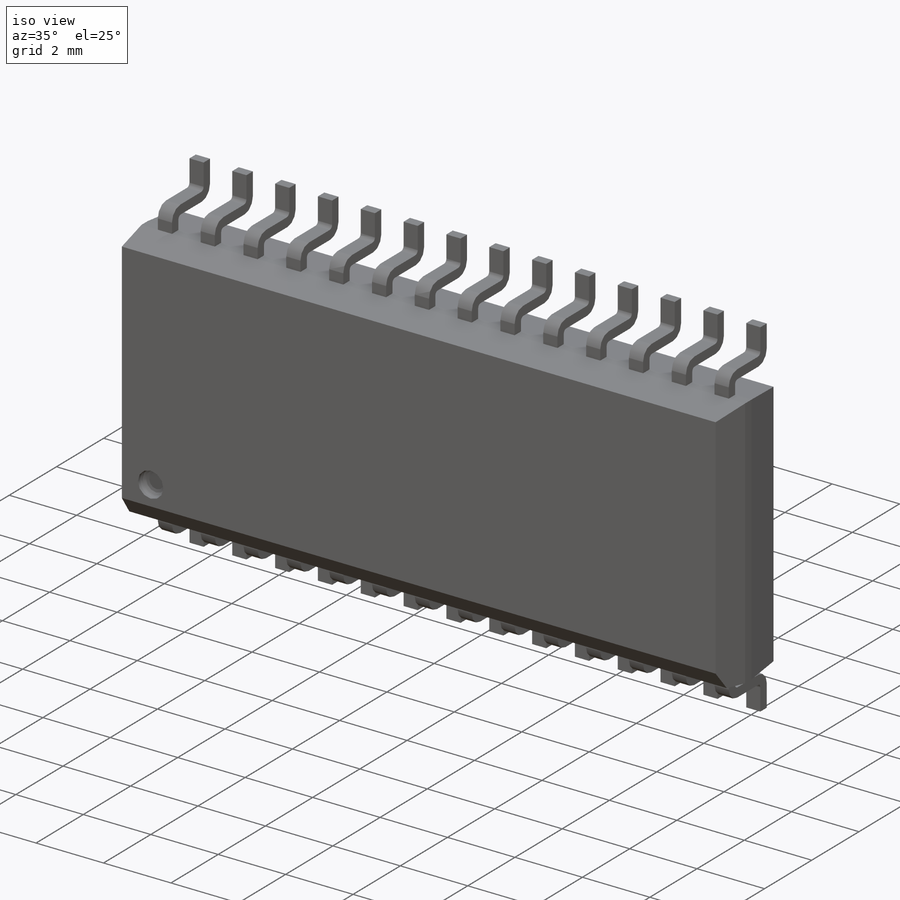
[diagram: iso view]
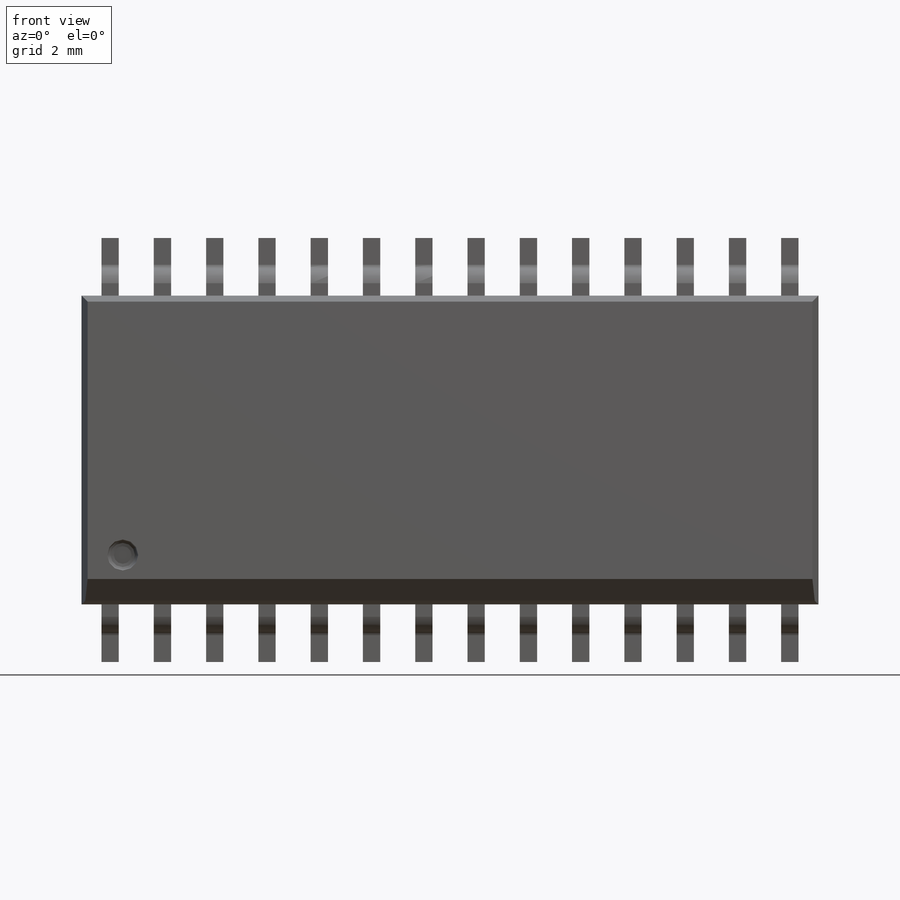
[diagram: front view]
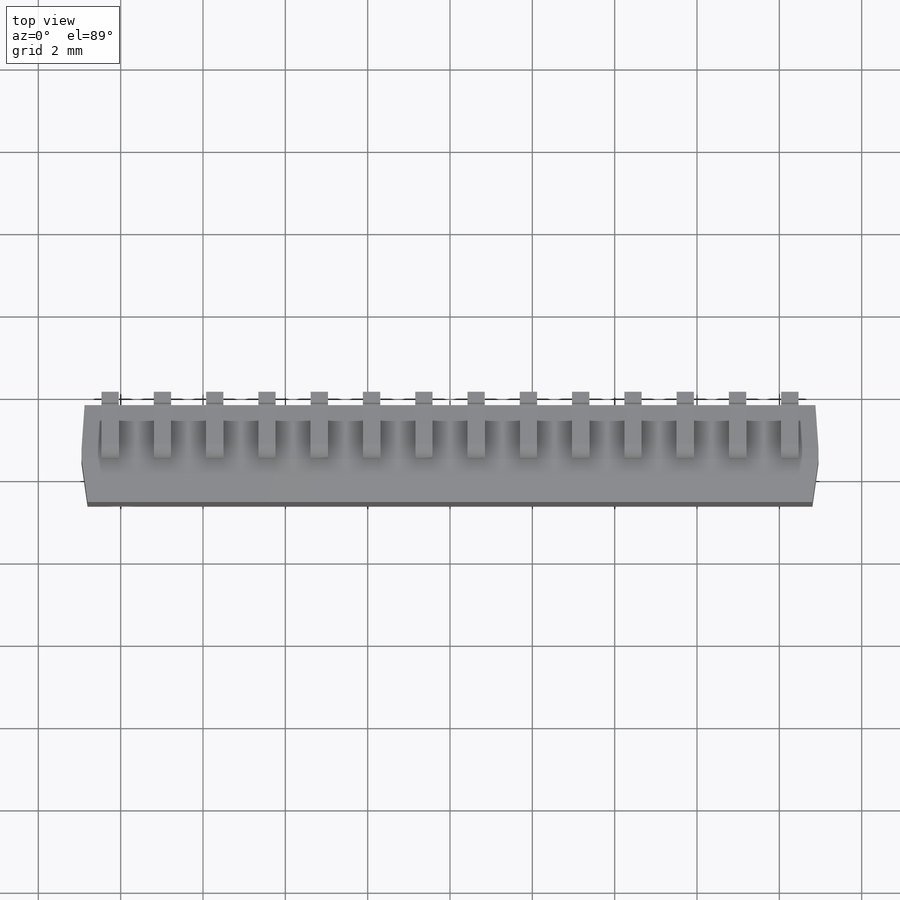
[diagram: top view]
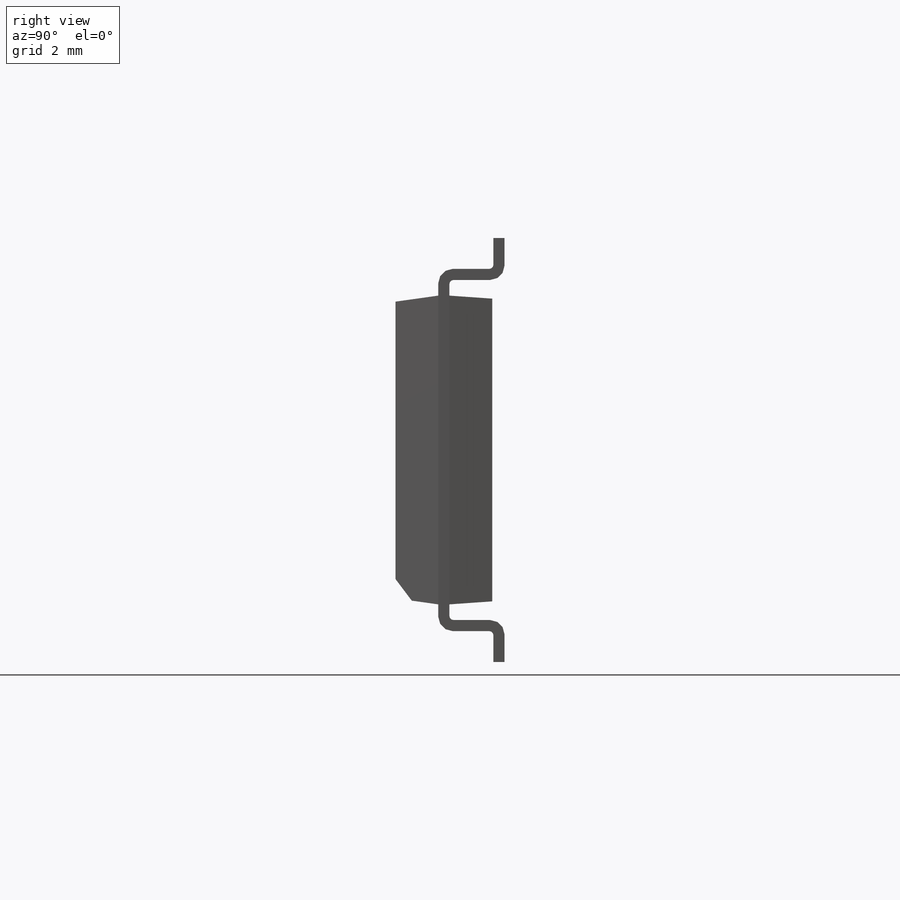
[diagram: right view]
SOLIDWORKS PART (.sldprt)
format: sldprt  version: not decoded by parser v0  size: 1,453,056 bytes
history: native  units: mm
features: fillet x113, sketch x11, extrude x9, chamfer x9, plane x3, cut_extrude x2, material x1 (+12 scaffold rows collapsed)
feature tree (160):
  scaffold x12  (default folders/planes/origin — collapsed)
  material  "Material <not specified>"
  plane  "Płaszczyzna przednia"
  plane  "Płaszczyzna górna"
  plane  "Płaszczyzna prawa"
  sketch  "Szkic1"  dims[D1=8.95mm D2=3.75mm]
  extrude  "Wyciągnięcie1"  Depth=2.65mm
  sketch  "Szkic2"
  extrude  "Wyciągnięcie2"  Depth=3.75mm
  sketch  "Szkic3"
  extrude  "Wyciągnięcie3"  Depth=8.95mm
  chamfer  "Sfazowanie1"  Distance=1.04mm Angle=8deg
  sketch  "Szkic4"  dims[D1=0.27mm D2=0.27mm D3=0.27mm D4=0.27mm D5=0.27mm D6=0.27mm D7=0.27mm D8=0.42mm D9=0.42mm D10=0.42mm D11=0.42mm D12=0.42mm D13=0.42mm D14=0.42mm D15=0.85mm D16=0.85mm D17=0.85mm D18=0.85mm D19=0.85mm D20=0.85mm D21=0.425mm D22=0.85mm D23=0.27mm D24=0.27mm D25=0.27mm D26=0.27mm D27=0.27mm D28=0.27mm D29=0.27mm D30=0.42mm D31=0.42mm D32=0.42mm D33=0.42mm D34=0.42mm D35=0.42mm D36=0.42mm D37=0.85mm D38=0.85mm D39=0.85mm D40=0.85mm D41=0.85mm D42=0.85mm D43=1.33mm]
  extrude  "Wyciągnięcie4"  Depth=0.65mm
  sketch  "Szkic5"  dims[D1=0.27mm D2=0.27mm D3=0.27mm D4=0.27mm D5=0.27mm D6=0.27mm D7=0.27mm D8=0.27mm D9=0.27mm D10=0.27mm D11=0.27mm D12=0.27mm D13=0.27mm D14=0.27mm]
  extrude  "Wyciągnięcie5"  Depth=1.34mm
  sketch  "Szkic6"
  cut_extrude  "Wytnij-wyciągnięcie1"  Depth=0.3mm
  chamfer  "Sfazowanie2"  Distance=1.04mm Angle=4deg
  chamfer  "Sfazowanie3"  Distance=1.04mm Angle=8deg
  chamfer  "Sfazowanie4"  Distance=1.04mm Angle=4deg
  sketch  "Szkic7"  dims[D1=0.27mm D2=0.27mm D3=0.27mm D4=0.27mm D5=0.27mm D6=0.27mm D7=0.27mm D8=0.27mm D9=0.27mm D10=0.27mm D11=0.27mm D12=0.27mm D13=0.27mm D14=0.27mm]
  extrude  "Wyciągnięcie6"  Depth=0.75mm
  sketch  "Szkic8"  dims[D1=0.42mm D2=0.85mm D3=0.42mm D4=0.85mm D5=0.42mm D6=0.85mm D7=0.42mm D8=0.85mm D9=0.42mm D10=0.85mm D11=0.42mm D12=0.85mm D13=0.42mm D14=0.85mm D15=0.425mm D16=0.42mm D17=0.85mm D18=0.42mm D19=0.85mm D20=0.42mm D21=0.85mm D22=0.42mm D23=0.85mm D24=0.42mm D25=0.85mm D26=0.42mm D27=0.85mm D28=0.42mm]
  extrude  "Wyciągnięcie7"  Depth=0.65mm
  sketch  "Szkic9"  dims[D1=0.27mm D2=0.27mm D3=0.27mm D4=0.27mm D5=0.27mm D6=0.27mm D7=0.27mm D8=0.27mm D9=0.27mm D10=0.27mm D11=0.27mm D12=0.27mm D13=0.27mm D14=0.27mm]
  extrude  "Wyciągnięcie8"  Depth=1.34mm
  sketch  "Szkic10"  dims[D1=0.27mm D2=0.27mm]
  extrude  "Wyciągnięcie9"  Depth=0.75mm
  fillet  "Zaokrąglenie1"  Radius=0.35mm
  fillet  "Zaokrąglenie2"  Radius=0.1mm
  fillet  "Zaokrąglenie3"  Radius=0.35mm
  fillet  "Zaokrąglenie4"  Radius=0.35mm
  fillet  "Zaokrąglenie5"  Radius=0.35mm
  fillet  "Zaokrąglenie6"  Radius=0.35mm
  fillet  "Zaokrąglenie7"  Radius=0.35mm
  fillet  "Zaokrąglenie8"  Radius=0.35mm
  fillet  "Zaokrąglenie9"  Radius=0.35mm
  fillet  "Zaokrąglenie10"  Radius=0.35mm
  fillet  "Zaokrąglenie11"  Radius=0.35mm
  fillet  "Zaokrąglenie12"  Radius=0.35mm
  fillet  "Zaokrąglenie13"  Radius=0.35mm
  fillet  "Zaokrąglenie14"  Radius=0.35mm
  fillet  "Zaokrąglenie15"  Radius=0.35mm
  fillet  "Zaokrąglenie16"  Radius=0.35mm
  fillet  "Zaokrąglenie17"  Radius=0.35mm
  fillet  "Zaokrąglenie18"  Radius=0.35mm
  fillet  "Zaokrąglenie19"  Radius=0.35mm
  fillet  "Zaokrąglenie20"  Radius=0.35mm
  fillet  "Zaokrąglenie21"  Radius=0.35mm
  fillet  "Zaokrąglenie22"  Radius=0.35mm
  fillet  "Zaokrąglenie23"  Radius=0.35mm
  fillet  "Zaokrąglenie24"  Radius=0.35mm
  fillet  "Zaokrąglenie25"  Radius=0.35mm
  fillet  "Zaokrąglenie26"  Radius=0.35mm
  fillet  "Zaokrąglenie27"  Radius=0.35mm
  fillet  "Zaokrąglenie28"  Radius=0.35mm
  fillet  "Zaokrąglenie29"  Radius=0.35mm
  chamfer  "Sfazowanie5"  Distance=0.4mm Angle=45deg
  fillet  "Zaokrąglenie30"  Radius=0.35mm
  fillet  "Zaokrąglenie31"  Radius=0.35mm
  fillet  "Zaokrąglenie32"  Radius=0.35mm
  fillet  "Zaokrąglenie33"  Radius=0.35mm
  fillet  "Zaokrąglenie34"  Radius=0.35mm
  fillet  "Zaokrąglenie35"  Radius=0.35mm
  fillet  "Zaokrąglenie36"  Radius=0.35mm
  fillet  "Zaokrąglenie37"  Radius=0.35mm
  fillet  "Zaokrąglenie38"  Radius=0.35mm
  fillet  "Zaokrąglenie39"  Radius=0.35mm
  fillet  "Zaokrąglenie40"  Radius=0.35mm
  fillet  "Zaokrąglenie41"  Radius=0.35mm
  fillet  "Zaokrąglenie42"  Radius=0.35mm
  fillet  "Zaokrąglenie43"  Radius=0.35mm
  fillet  "Zaokrąglenie44"  Radius=0.35mm
  fillet  "Zaokrąglenie45"  Radius=0.35mm
  fillet  "Zaokrąglenie46"  Radius=0.35mm
  fillet  "Zaokrąglenie47"  Radius=0.35mm
  fillet  "Zaokrąglenie48"  Radius=0.35mm
  fillet  "Zaokrąglenie49"  Radius=0.35mm
  fillet  "Zaokrąglenie50"  Radius=0.35mm
  fillet  "Zaokrąglenie51"  Radius=0.35mm
  fillet  "Zaokrąglenie52"  Radius=0.35mm
  fillet  "Zaokrąglenie53"  Radius=0.35mm
  fillet  "Zaokrąglenie54"  Radius=0.35mm
  fillet  "Zaokrąglenie55"  Radius=0.35mm
  fillet  "Zaokrąglenie56"  Radius=0.35mm
  fillet  "Zaokrąglenie57"  Radius=0.35mm
  fillet  "Zaokrąglenie58"  Radius=0.1mm
  fillet  "Zaokrąglenie59"  Radius=0.1mm
  fillet  "Zaokrąglenie60"  Radius=0.1mm
  fillet  "Zaokrąglenie61"  Radius=0.1mm
  fillet  "Zaokrąglenie62"  Radius=0.1mm
  fillet  "Zaokrąglenie63"  Radius=0.1mm
  fillet  "Zaokrąglenie64"  Radius=0.1mm
  fillet  "Zaokrąglenie65"  Radius=0.1mm
  fillet  "Zaokrąglenie66"  Radius=0.1mm
  fillet  "Zaokrąglenie67"  Radius=0.1mm
  fillet  "Zaokrąglenie68"  Radius=0.1mm
  fillet  "Zaokrąglenie69"  Radius=0.1mm
  fillet  "Zaokrąglenie70"  Radius=0.1mm
  fillet  "Zaokrąglenie71"  Radius=0.1mm
  fillet  "Zaokrąglenie72"  Radius=0.1mm
  fillet  "Zaokrąglenie73"  Radius=0.1mm
  fillet  "Zaokrąglenie74"  Radius=0.1mm
  fillet  "Zaokrąglenie75"  Radius=0.1mm
  fillet  "Zaokrąglenie76"  Radius=0.1mm
  fillet  "Zaokrąglenie77"  Radius=0.1mm
  fillet  "Zaokrąglenie78"  Radius=0.1mm
  fillet  "Zaokrąglenie79"  Radius=0.1mm
  fillet  "Zaokrąglenie80"  Radius=0.1mm
  fillet  "Zaokrąglenie81"  Radius=0.1mm
  fillet  "Zaokrąglenie82"  Radius=0.1mm
  fillet  "Zaokrąglenie83"  Radius=0.1mm
  fillet  "Zaokrąglenie84"  Radius=0.1mm
  fillet  "Zaokrąglenie85"  Radius=0.1mm
  fillet  "Zaokrąglenie86"  Radius=0.1mm
  fillet  "Zaokrąglenie87"  Radius=0.1mm
  fillet  "Zaokrąglenie88"  Radius=0.1mm
  fillet  "Zaokrąglenie89"  Radius=0.1mm
  fillet  "Zaokrąglenie90"  Radius=0.1mm
  fillet  "Zaokrąglenie91"  Radius=0.1mm
  fillet  "Zaokrąglenie92"  Radius=0.1mm
  fillet  "Zaokrąglenie93"  Radius=0.1mm
  fillet  "Zaokrąglenie94"  Radius=0.1mm
  fillet  "Zaokrąglenie95"  Radius=0.1mm
  fillet  "Zaokrąglenie96"  Radius=0.1mm
  fillet  "Zaokrąglenie97"  Radius=0.1mm
  fillet  "Zaokrąglenie98"  Radius=0.1mm
  fillet  "Zaokrąglenie99"  Radius=0.1mm
  fillet  "Zaokrąglenie100"  Radius=0.1mm
  fillet  "Zaokrąglenie101"  Radius=0.1mm
  fillet  "Zaokrąglenie102"  Radius=0.1mm
  fillet  "Zaokrąglenie103"  Radius=0.1mm
  fillet  "Zaokrąglenie104"  Radius=0.1mm
  fillet  "Zaokrąglenie105"  Radius=0.1mm
  fillet  "Zaokrąglenie106"  Radius=0.1mm
  fillet  "Zaokrąglenie107"  Radius=0.1mm
  fillet  "Zaokrąglenie108"  Radius=0.1mm
  fillet  "Zaokrąglenie109"  Radius=0.1mm
  fillet  "Zaokrąglenie110"  Radius=0.1mm
  fillet  "Zaokrąglenie111"  Radius=0.1mm
  fillet  "Zaokrąglenie112"  Radius=0.1mm
  chamfer  "Sfazowanie6"  Distance=1.04mm Angle=8deg
  chamfer  "Sfazowanie7"  Distance=1.04mm Angle=8deg
  chamfer  "Sfazowanie8"  Distance=1.04mm Angle=4deg
  chamfer  "Sfazowanie9"  Distance=1.04mm Angle=4deg
  sketch  "Szkic11"  dims[D1=0.75mm D2=1.0mm D3=1.2mm]
  cut_extrude  "Wytnij-wyciągnięcie2"  Depth=0.25mm
  fillet  "Zaokrąglenie113"  Radius=0.16mm
decode coverage: 141 of 144 modeling features carry decoded parameters
note: suppression state not decoded; provenance and decode notes live in map.json
